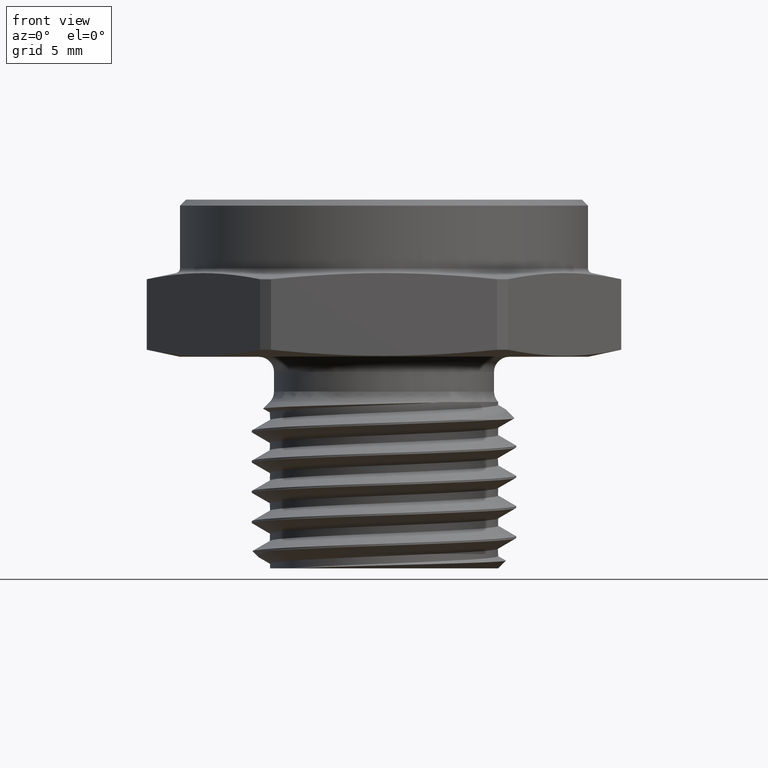
[diagram: clean part render]
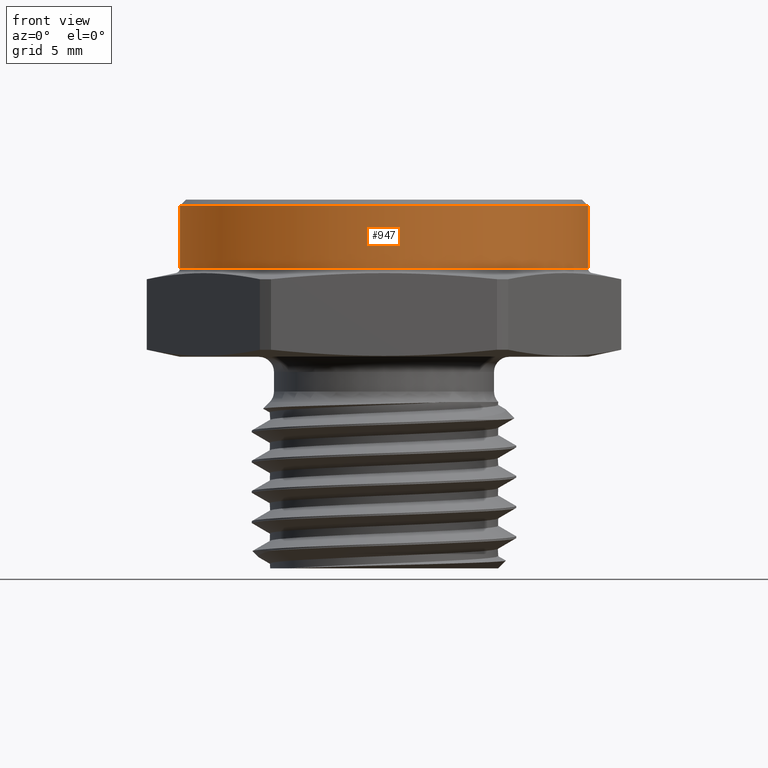
[diagram: same view with one face highlighted and labeled with its STEP entity id]
A machine part, front view. The second image highlights one B-rep face of the part: STEP entity #947.
In plain terms, the highlighted cylindrical surface (partial cylindrical patch) has radius 8.5725 mm, axis along (-0, -0, -1).
Its self-contained STEP definition (entity closure, byte-faithful):
#35 = CIRCLE ( 'NONE', #2013, 0.3374999999999998000 ) ;
#184 = LINE ( 'NONE', #314, #192 ) ;
#189 = CIRCLE ( 'NONE', #2039, 0.3374999999999998000 ) ;
#192 = VECTOR ( 'NONE', #309, 39.37007874015748100 ) ;
#203 = LINE ( 'NONE', #380, #206 ) ;
#206 = VECTOR ( 'NONE', #375, 39.37007874015748100 ) ;
#309 = DIRECTION ( 'NONE',  ( -0.0000000000000000000, -0.0000000000000000000, -1.000000000000000000 ) ) ;
#310 = CARTESIAN_POINT ( 'NONE',  ( 0.0000000000000000000, 0.0000000000000000000, 0.1464782722655601200 ) ) ;
#311 = DIRECTION ( 'NONE',  ( 6.123233995736748800E-017, 0.0000000000000000000, 1.000000000000000000 ) ) ;
#312 = DIRECTION ( 'NONE',  ( 1.000000000000000000, 0.0000000000000000000, -5.058977766044935000E-017 ) ) ;
#314 = CARTESIAN_POINT ( 'NONE',  ( -0.3374999999999998000, 0.0000000000000000000, 0.2600000000000000100 ) ) ;
#375 = DIRECTION ( 'NONE',  ( -0.0000000000000000000, -0.0000000000000000000, -1.000000000000000000 ) ) ;
#380 = CARTESIAN_POINT ( 'NONE',  ( 0.3374999999999998000, 4.133182947122313500E-017, 0.2600000000000000100 ) ) ;
#880 = EDGE_LOOP ( 'NONE', ( #2484, #2485, #2486, #2487 ) ) ;
#898 = VERTEX_POINT ( 'NONE', #2683 ) ;
#947 = ADVANCED_FACE ( 'NONE', ( #1006 ), #1009, .T. ) ;
#1006 = FACE_OUTER_BOUND ( 'NONE', #880, .T. ) ;
#1009 = CYLINDRICAL_SURFACE ( 'NONE', #1995, 0.3374999999999998000 ) ;
#1131 = CARTESIAN_POINT ( 'NONE',  ( 0.0000000000000000000, 0.0000000000000000000, 0.2500000000000006100 ) ) ;
#1132 = DIRECTION ( 'NONE',  ( 0.0000000000000000000, 0.0000000000000000000, -1.000000000000000000 ) ) ;
#1133 = DIRECTION ( 'NONE',  ( 1.000000000000000000, 0.0000000000000000000, 0.0000000000000000000 ) ) ;
#1757 = CARTESIAN_POINT ( 'NONE',  ( 0.3374999999999998000, 4.133182947122313500E-017, 0.2500000000000006100 ) ) ;
#1777 = CARTESIAN_POINT ( 'NONE',  ( -0.3374999999999998000, 0.0000000000000000000, 0.2500000000000006100 ) ) ;
#1780 = CARTESIAN_POINT ( 'NONE',  ( 0.3374999999999998000, 4.133182947122313500E-017, 0.1464782722655600900 ) ) ;
#1875 = EDGE_CURVE ( 'NONE', #2339, #2340, #35, .T. ) ;
#1932 = EDGE_CURVE ( 'NONE', #898, #2344, #189, .T. ) ;
#1934 = EDGE_CURVE ( 'NONE', #2340, #898, #184, .T. ) ;
#1948 = EDGE_CURVE ( 'NONE', #2339, #2344, #203, .T. ) ;
#1995 = AXIS2_PLACEMENT_3D ( 'NONE', #2669, #2741, #2754 ) ;
#2013 = AXIS2_PLACEMENT_3D ( 'NONE', #1131, #1132, #1133 ) ;
#2039 = AXIS2_PLACEMENT_3D ( 'NONE', #310, #311, #312 ) ;
#2339 = VERTEX_POINT ( 'NONE', #1757 ) ;
#2340 = VERTEX_POINT ( 'NONE', #1777 ) ;
#2344 = VERTEX_POINT ( 'NONE', #1780 ) ;
#2484 = ORIENTED_EDGE ( 'NONE', *, *, #1948, .F. ) ;
#2485 = ORIENTED_EDGE ( 'NONE', *, *, #1875, .T. ) ;
#2486 = ORIENTED_EDGE ( 'NONE', *, *, #1934, .T. ) ;
#2487 = ORIENTED_EDGE ( 'NONE', *, *, #1932, .T. ) ;
#2669 = CARTESIAN_POINT ( 'NONE',  ( 0.0000000000000000000, 0.0000000000000000000, 0.2600000000000000100 ) ) ;
#2683 = CARTESIAN_POINT ( 'NONE',  ( -0.3374999999999998000, 0.0000000000000000000, 0.1464782722655601200 ) ) ;
#2741 = DIRECTION ( 'NONE',  ( -0.0000000000000000000, -0.0000000000000000000, -1.000000000000000000 ) ) ;
#2754 = DIRECTION ( 'NONE',  ( -1.000000000000000000, 0.0000000000000000000, 0.0000000000000000000 ) ) ;